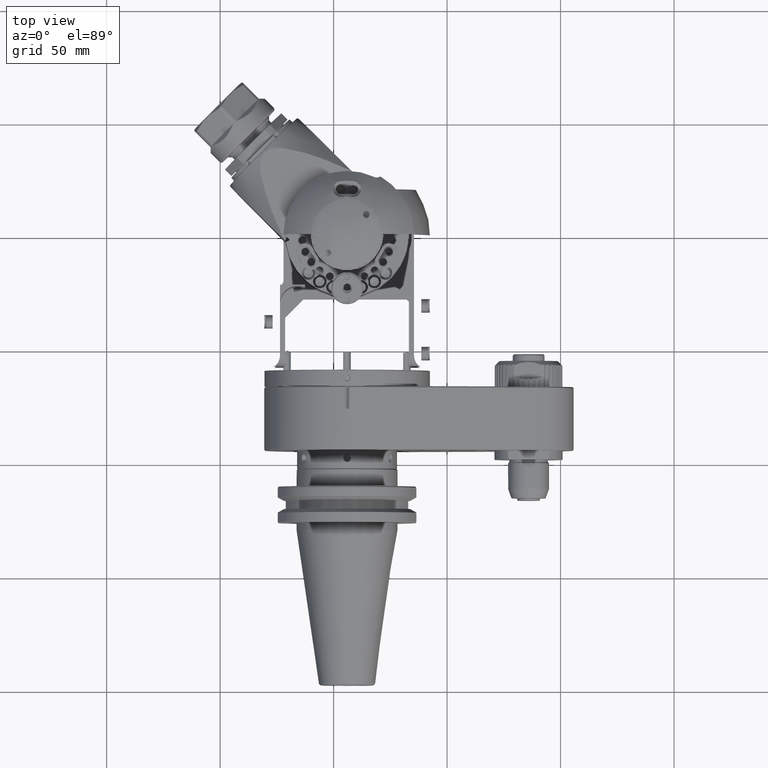
[diagram: clean part render]
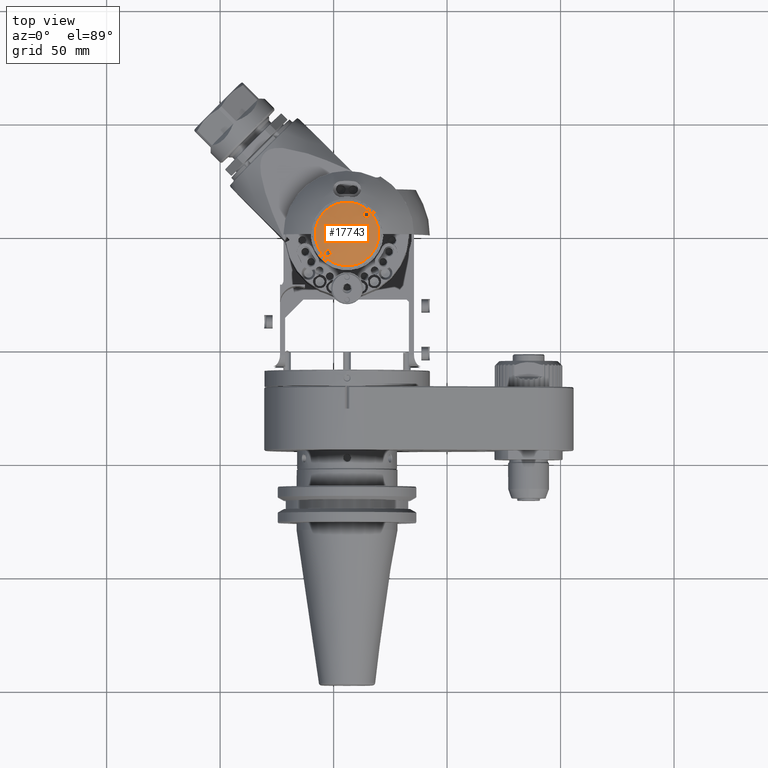
[diagram: same view with one face highlighted and labeled with its STEP entity id]
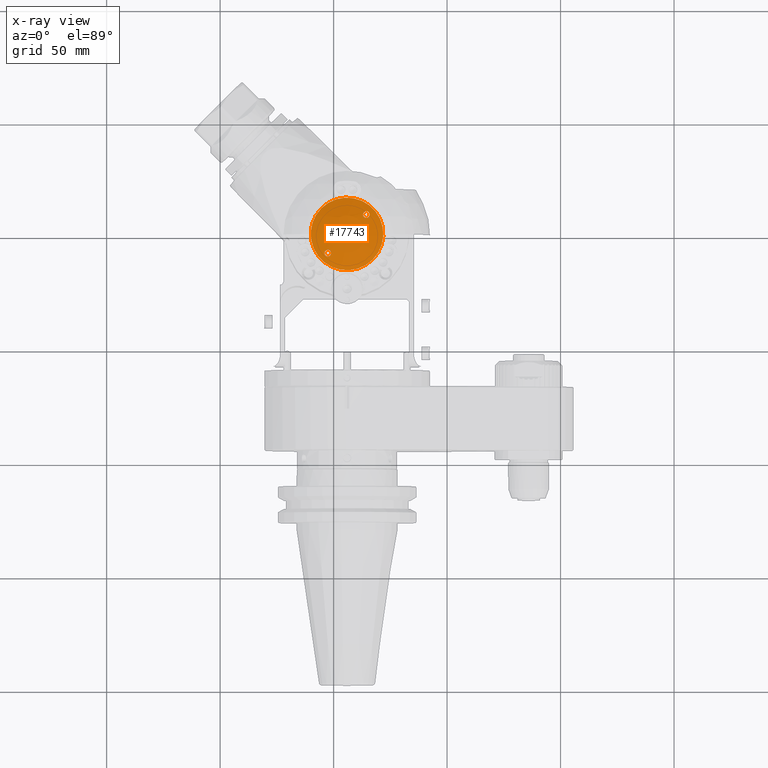
[diagram: x-ray of the same camera — body ghosted, the highlighted face saturated]
A machine part, top view. The second image highlights one B-rep face of the part: STEP entity #17743.
The next image is the same camera in x-ray: the body ghosted, the highlighted face saturated — about 0% of this face is hidden behind the body in this view.
In plain terms, the highlighted spherical surface has radius 45 mm.
Its self-contained STEP definition (entity closure, byte-faithful):
#100=SPHERICAL_SURFACE('',#19316,45.);
#997=FACE_BOUND('',#2560,.T.);
#998=FACE_BOUND('',#2561,.T.);
#1415=FACE_OUTER_BOUND('',#2559,.T.);
#2559=EDGE_LOOP('',(#13473,#13474,#13475));
#2560=EDGE_LOOP('',(#13476,#13477));
#2561=EDGE_LOOP('',(#13478));
#3759=CIRCLE('',#19315,16.);
#3760=CIRCLE('',#19317,45.);
#7084=B_SPLINE_CURVE_WITH_KNOTS('',3,(#30423,#30424,#30425,#30426,#30427,
#30428,#30429,#30430,#30431,#30432,#30433,#30434,#30435,#30436,#30437,#30438,
#30439,#30440),.UNSPECIFIED.,.F.,.F.,(4,2,2,2,2,2,2,2,4),(-0.921136126734525,
-0.864740975295719,-0.808345823856913,-0.74961627782881,-0.690886731800707,
-0.632125922750777,-0.573365113700847,-0.516966588534055,-0.460568063367262),
 .UNSPECIFIED.);
#7085=B_SPLINE_CURVE_WITH_KNOTS('',3,(#30441,#30442,#30443,#30444,#30445,
#30446,#30447,#30448,#30449,#30450,#30451,#30452,#30453,#30454,#30455,#30456,
#30457,#30458),.UNSPECIFIED.,.F.,.F.,(4,2,2,2,2,2,2,2,4),(-0.460568063367262,
-0.40416953820047,-0.347771013033677,-0.289010203983748,-0.230249394933818,
-0.171519848905715,-0.112790302877611,-0.0563951514388057,0.),
 .UNSPECIFIED.);
#7086=B_SPLINE_CURVE_WITH_KNOTS('',3,(#30460,#30461,#30462,#30463,#30464,
#30465,#30466,#30467,#30468,#30469,#30470,#30471,#30472,#30473,#30474,#30475,
#30476,#30477,#30478,#30479,#30480,#30481,#30482,#30483,#30484,#30485,#30486,
#30487,#30488,#30489,#30490,#30491,#30492,#30493),.UNSPECIFIED.,.T.,.F.,
(4,2,2,2,2,2,2,2,2,2,2,2,2,2,2,2,4),(-0.921136126734526,-0.86474097529572,
-0.808345823856914,-0.749616277828811,-0.690886731800708,-0.632125922750778,
-0.573365113700848,-0.516966588534055,-0.460568063367263,-0.404169538200471,
-0.347771013033678,-0.289010203983748,-0.230249394933818,-0.171519848905715,
-0.112790302877611,-0.0563951514388057,0.),.UNSPECIFIED.);
#7862=VERTEX_POINT('',#30415);
#7863=VERTEX_POINT('',#30419);
#7864=VERTEX_POINT('',#30421);
#7865=VERTEX_POINT('',#30422);
#7866=VERTEX_POINT('',#30459);
#9934=EDGE_CURVE('',#7862,#7862,#3759,.T.);
#9936=EDGE_CURVE('',#7863,#7862,#3760,.T.);
#9937=EDGE_CURVE('',#7864,#7865,#7084,.T.);
#9938=EDGE_CURVE('',#7865,#7864,#7085,.T.);
#9939=EDGE_CURVE('',#7866,#7866,#7086,.T.);
#13473=ORIENTED_EDGE('',*,*,#9934,.T.);
#13474=ORIENTED_EDGE('',*,*,#9936,.F.);
#13475=ORIENTED_EDGE('',*,*,#9936,.T.);
#13476=ORIENTED_EDGE('',*,*,#9937,.T.);
#13477=ORIENTED_EDGE('',*,*,#9938,.T.);
#13478=ORIENTED_EDGE('',*,*,#9939,.T.);
#17743=ADVANCED_FACE('',(#1415,#997,#998),#100,.T.);
#19315=AXIS2_PLACEMENT_3D('',#30416,#22604,#22605);
#19316=AXIS2_PLACEMENT_3D('',#30418,#22607,#22608);
#19317=AXIS2_PLACEMENT_3D('',#30420,#22609,#22610);
#22604=DIRECTION('center_axis',(-1.,0.,0.));
#22605=DIRECTION('ref_axis',(0.,0.,-1.));
#22607=DIRECTION('center_axis',(-1.,0.,6.12323399573677E-17));
#22608=DIRECTION('ref_axis',(0.,0.,1.));
#22609=DIRECTION('center_axis',(0.,-1.,1.97372982155583E-16));
#22610=DIRECTION('ref_axis',(0.,-1.97372982155583E-16,-1.));
#30415=CARTESIAN_POINT('',(-32.65948168963,67.,-16.));
#30416=CARTESIAN_POINT('Origin',(-32.65948168963,67.,0.));
#30418=CARTESIAN_POINT('Origin',(9.4,67.,0.));
#30419=CARTESIAN_POINT('',(-35.6,67.,-2.75545529808154E-15));
#30420=CARTESIAN_POINT('Origin',(9.4,67.,0.));
#30421=CARTESIAN_POINT('',(-34.35785643744,56.5,0.));
#30422=CARTESIAN_POINT('',(-33.5272640637626,53.5,-2.5509618525931E-16));
#30423=CARTESIAN_POINT('Ctrl Pts',(-34.3578564374445,56.5,-1.35308431126191E-15));
#30424=CARTESIAN_POINT('Ctrl Pts',(-34.3578564374445,56.5,0.187983838129351));
#30425=CARTESIAN_POINT('Ctrl Pts',(-34.3475661369393,56.4624630418682,0.3879979741178));
#30426=CARTESIAN_POINT('Ctrl Pts',(-34.3060971213795,56.3113539852033,0.754778950889196));
#30427=CARTESIAN_POINT('Ctrl Pts',(-34.2749252009104,56.1978259071249,0.921564694148788));
#30428=CARTESIAN_POINT('Ctrl Pts',(-34.2021892831712,55.9333138947965,1.18990434855181));
#30429=CARTESIAN_POINT('Ctrl Pts',(-34.1552351769809,55.7627447666333,1.30724386180207));
#30430=CARTESIAN_POINT('Ctrl Pts',(-34.0525324399303,55.3904141016671,1.46227317632211));
#30431=CARTESIAN_POINT('Ctrl Pts',(-33.9967828977494,55.1886682325447,1.5));
#30432=CARTESIAN_POINT('Ctrl Pts',(-33.8922889582458,54.8112313352288,1.5));
#30433=CARTESIAN_POINT('Ctrl Pts',(-33.8363180277886,54.6094383408488,1.46223700091448));
#30434=CARTESIAN_POINT('Ctrl Pts',(-33.732848997462,54.237082755727,1.30714676074722));
#30435=CARTESIAN_POINT('Ctrl Pts',(-33.6853593282688,54.0665322419394,1.18978490187497));
#30436=CARTESIAN_POINT('Ctrl Pts',(-33.6116479949042,53.8021066688978,0.921461087008377));
#30437=CARTESIAN_POINT('Ctrl Pts',(-33.5799636767645,53.6886180183462,0.754721587121455));
#30438=CARTESIAN_POINT('Ctrl Pts',(-33.5377624933487,53.5375417783738,0.387999081575612));
#30439=CARTESIAN_POINT('Ctrl Pts',(-33.5272640637626,53.5,0.187995083889307));
#30440=CARTESIAN_POINT('Ctrl Pts',(-33.5272640637626,53.5,-6.93889390390723E-16));
#30441=CARTESIAN_POINT('Ctrl Pts',(-33.5272640637626,53.5,3.46944695195361E-16));
#30442=CARTESIAN_POINT('Ctrl Pts',(-33.5272640637626,53.5,-0.187995083889308));
#30443=CARTESIAN_POINT('Ctrl Pts',(-33.5377624933487,53.5375417783738,-0.387999081575621));
#30444=CARTESIAN_POINT('Ctrl Pts',(-33.5799636767645,53.6886180183462,-0.754721587121463));
#30445=CARTESIAN_POINT('Ctrl Pts',(-33.6116479949042,53.8021066688978,-0.921461087008377));
#30446=CARTESIAN_POINT('Ctrl Pts',(-33.6853593282688,54.0665322419394,-1.18978490187497));
#30447=CARTESIAN_POINT('Ctrl Pts',(-33.732848997462,54.237082755727,-1.30714676074722));
#30448=CARTESIAN_POINT('Ctrl Pts',(-33.8363180277886,54.6094383408488,-1.46223700091448));
#30449=CARTESIAN_POINT('Ctrl Pts',(-33.8922889582458,54.8112313352288,-1.5));
#30450=CARTESIAN_POINT('Ctrl Pts',(-33.9967828977494,55.1886682325447,-1.5));
#30451=CARTESIAN_POINT('Ctrl Pts',(-34.0525324399303,55.3904141016671,-1.46227317632211));
#30452=CARTESIAN_POINT('Ctrl Pts',(-34.1552351769809,55.7627447666333,-1.30724386180207));
#30453=CARTESIAN_POINT('Ctrl Pts',(-34.2021892831712,55.9333138947965,-1.18990434855181));
#30454=CARTESIAN_POINT('Ctrl Pts',(-34.2749252009104,56.1978259071249,-0.921564694148788));
#30455=CARTESIAN_POINT('Ctrl Pts',(-34.3060971213795,56.3113539852033,-0.754778950889196));
#30456=CARTESIAN_POINT('Ctrl Pts',(-34.3475661369393,56.4624630418682,-0.3879979741178));
#30457=CARTESIAN_POINT('Ctrl Pts',(-34.3578564374445,56.5,-0.187983838129351));
#30458=CARTESIAN_POINT('Ctrl Pts',(-34.3578564374445,56.5,1.17961196366423E-15));
#30459=CARTESIAN_POINT('',(-33.52726406376,80.5,0.));
#30460=CARTESIAN_POINT('Ctrl Pts',(-34.3578564374445,77.5,1.73472347597681E-16));
#30461=CARTESIAN_POINT('Ctrl Pts',(-34.3578564374445,77.5,-0.187983838129352));
#30462=CARTESIAN_POINT('Ctrl Pts',(-34.3475661369393,77.5375369581318,-0.3879979741178));
#30463=CARTESIAN_POINT('Ctrl Pts',(-34.3060971213795,77.6886460147967,-0.754778950889196));
#30464=CARTESIAN_POINT('Ctrl Pts',(-34.2749252009104,77.8021740928751,-0.921564694148788));
#30465=CARTESIAN_POINT('Ctrl Pts',(-34.2021892831712,78.0666861052035,-1.18990434855181));
#30466=CARTESIAN_POINT('Ctrl Pts',(-34.1552351769809,78.2372552333667,-1.30724386180207));
#30467=CARTESIAN_POINT('Ctrl Pts',(-34.0525324399303,78.6095858983329,-1.46227317632211));
#30468=CARTESIAN_POINT('Ctrl Pts',(-33.9967828977494,78.8113317674553,-1.5));
#30469=CARTESIAN_POINT('Ctrl Pts',(-33.8922889582458,79.1887686647712,-1.5));
#30470=CARTESIAN_POINT('Ctrl Pts',(-33.8363180277886,79.3905616591511,-1.46223700091448));
#30471=CARTESIAN_POINT('Ctrl Pts',(-33.732848997462,79.762917244273,-1.30714676074723));
#30472=CARTESIAN_POINT('Ctrl Pts',(-33.6853593282688,79.9334677580606,-1.18978490187497));
#30473=CARTESIAN_POINT('Ctrl Pts',(-33.6116479949042,80.1978933311022,-0.921461087008377));
#30474=CARTESIAN_POINT('Ctrl Pts',(-33.5799636767645,80.3113819816538,-0.754721587121464));
#30475=CARTESIAN_POINT('Ctrl Pts',(-33.5377624933487,80.4624582216262,-0.387999081575622));
#30476=CARTESIAN_POINT('Ctrl Pts',(-33.5272640637626,80.5,-0.187995083889308));
#30477=CARTESIAN_POINT('Ctrl Pts',(-33.5272640637626,80.5,0.187995083889308));
#30478=CARTESIAN_POINT('Ctrl Pts',(-33.5377624933487,80.4624582216262,0.387999081575622));
#30479=CARTESIAN_POINT('Ctrl Pts',(-33.5799636767645,80.3113819816538,0.754721587121464));
#30480=CARTESIAN_POINT('Ctrl Pts',(-33.6116479949042,80.1978933311022,0.921461087008377));
#30481=CARTESIAN_POINT('Ctrl Pts',(-33.6853593282688,79.9334677580606,1.18978490187497));
#30482=CARTESIAN_POINT('Ctrl Pts',(-33.732848997462,79.762917244273,1.30714676074722));
#30483=CARTESIAN_POINT('Ctrl Pts',(-33.8363180277886,79.3905616591512,1.46223700091448));
#30484=CARTESIAN_POINT('Ctrl Pts',(-33.8922889582458,79.1887686647712,1.5));
#30485=CARTESIAN_POINT('Ctrl Pts',(-33.9967828977494,78.8113317674553,1.5));
#30486=CARTESIAN_POINT('Ctrl Pts',(-34.0525324399303,78.6095858983329,1.46227317632211));
#30487=CARTESIAN_POINT('Ctrl Pts',(-34.1552351769809,78.2372552333667,1.30724386180207));
#30488=CARTESIAN_POINT('Ctrl Pts',(-34.2021892831712,78.0666861052035,1.18990434855181));
#30489=CARTESIAN_POINT('Ctrl Pts',(-34.2749252009104,77.8021740928751,0.921564694148788));
#30490=CARTESIAN_POINT('Ctrl Pts',(-34.3060971213795,77.6886460147967,0.754778950889196));
#30491=CARTESIAN_POINT('Ctrl Pts',(-34.3475661369393,77.5375369581318,0.3879979741178));
#30492=CARTESIAN_POINT('Ctrl Pts',(-34.3578564374445,77.5,0.187983838129354));
#30493=CARTESIAN_POINT('Ctrl Pts',(-34.3578564374445,77.5,1.52655665885959E-15));